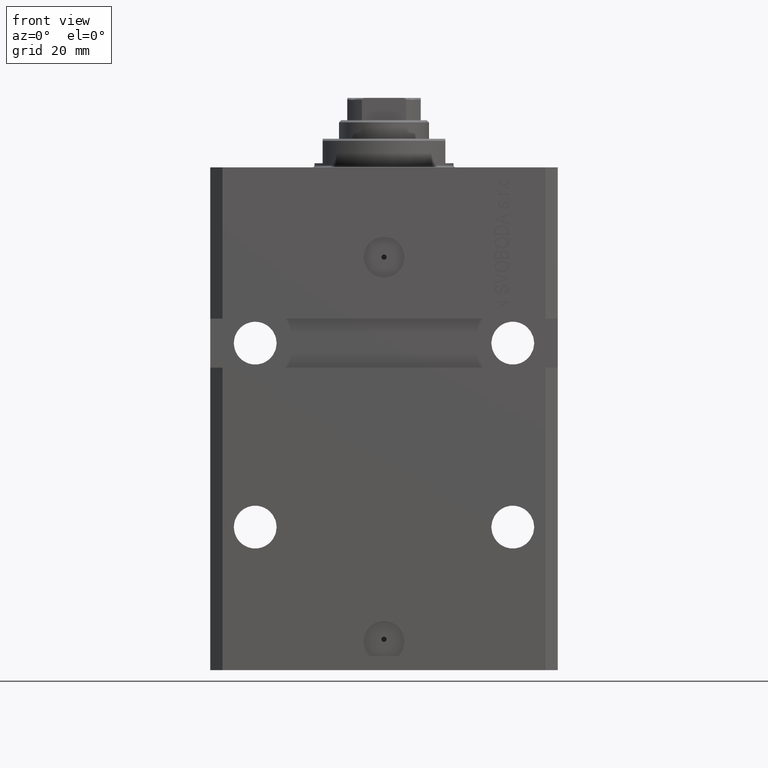
[diagram: clean part render]
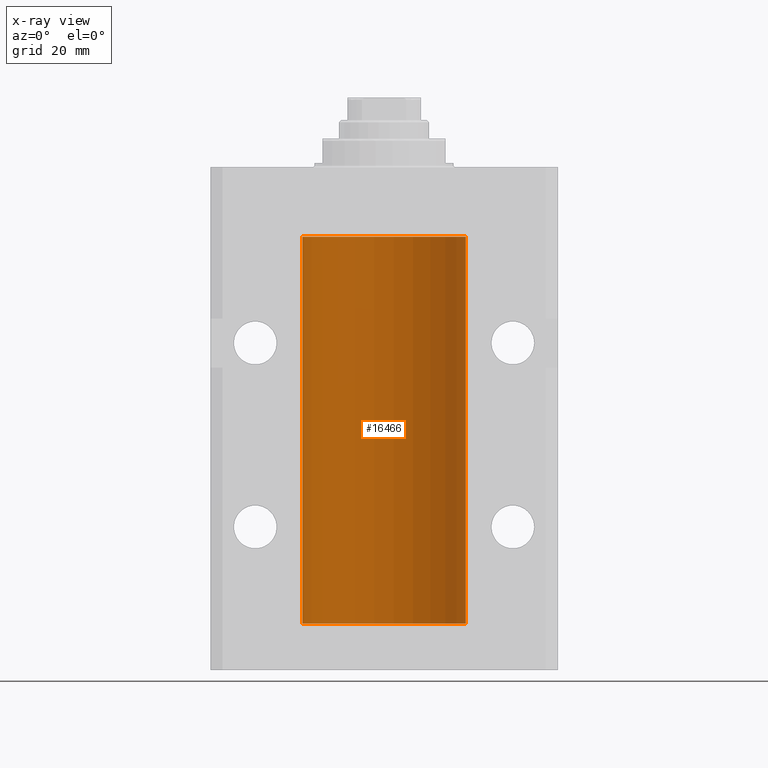
[diagram: x-ray — body ghosted, one internal face saturated and labeled with its STEP entity id]
A machine part, front view, then the same camera in x-ray: the body is ghosted and one INTERNAL B-rep face — a face not visible from any outside direction — is saturated and labeled: STEP entity #16466.
In plain terms, the highlighted cylindrical surface (partial cylindrical patch) has radius 20 mm, axis along (0, 0, 1).
Its self-contained STEP definition (entity closure, byte-faithful):
#91 = LINE ( 'NONE', #40933, #8524 ) ;
#765 = CARTESIAN_POINT ( 'NONE',  ( -19.99769349528941476, 0.3253804398728720182, -109.5585582072768318 ) ) ;
#1246 = CARTESIAN_POINT ( 'NONE',  ( -19.99253506710754991, 0.5587120480776772702, -109.3251162083024894 ) ) ;
#1426 = CARTESIAN_POINT ( 'NONE',  ( -19.99947377218718714, 0.1636439183262877461, -23.39126364004656011 ) ) ;
#1667 = CARTESIAN_POINT ( 'NONE',  ( -20.00000000000000000, 0.1631688615953320320, -24.62499999999985434 ) ) ;
#2355 = CIRCLE ( 'NONE', #7020, 20.00000000000000000 ) ;
#3598 = VERTEX_POINT ( 'NONE', #47060 ) ;
#3640 = ORIENTED_EDGE ( 'NONE', *, *, #6582, .F. ) ;
#4176 = CARTESIAN_POINT ( 'NONE',  ( -20.00000000000000355, 0.1631688615953337806, -109.6249999999998721 ) ) ;
#5321 = CARTESIAN_POINT ( 'NONE',  ( -19.99253506710754991, 0.5587120480776751608, -24.32511620830248589 ) ) ;
#5372 = CARTESIAN_POINT ( 'NONE',  ( -20.00000000000000000, 2.449293598294706513E-15, -111.5999999999999943 ) ) ;
#6346 = CARTESIAN_POINT ( 'NONE',  ( 0.000000000000000000, 0.000000000000000000, -111.5999999999999943 ) ) ;
#6582 = EDGE_CURVE ( 'NONE', #11101, #3598, #24065, .T. ) ;
#6890 = VERTEX_POINT ( 'NONE', #23530 ) ;
#7020 = AXIS2_PLACEMENT_3D ( 'NONE', #11689, #30610, #48143 ) ;
#8084 = CARTESIAN_POINT ( 'NONE',  ( -19.99638934703457593, 0.3843678041337614260, -108.5004636297810094 ) ) ;
#8262 = CARTESIAN_POINT ( 'NONE',  ( -19.99023018003212471, 0.6250578794725500931, -24.16284809704970371 ) ) ;
#8300 = CARTESIAN_POINT ( 'NONE',  ( 0.000000000000000000, 0.000000000000000000, -111.5999999999999943 ) ) ;
#8524 = VECTOR ( 'NONE', #44357, 1000.000000000000000 ) ;
#8733 = VERTEX_POINT ( 'NONE', #46745 ) ;
#8747 = CARTESIAN_POINT ( 'NONE',  ( -19.99769349528941120, 0.3253804398728645242, -24.55855820727680339 ) ) ;
#8862 = AXIS2_PLACEMENT_3D ( 'NONE', #6346, #20920, #47423 ) ;
#8883 = VECTOR ( 'NONE', #13068, 1000.000000000000000 ) ;
#9223 = CARTESIAN_POINT ( 'NONE',  ( -19.99999999999999645, 0.08259581631026780002, -23.37500000000000000 ) ) ;
#9240 = DIRECTION ( 'NONE',  ( -0.000000000000000000, -0.000000000000000000, 1.000000000000000000 ) ) ;
#11101 = VERTEX_POINT ( 'NONE', #42664 ) ;
#11689 = CARTESIAN_POINT ( 'NONE',  ( 0.000000000000000000, 0.000000000000000000, -17.00000000000000000 ) ) ;
#12222 = CARTESIAN_POINT ( 'NONE',  ( -20.00000000000000000, -1.494965790691426527E-14, -108.3750000000000000 ) ) ;
#12503 = ORIENTED_EDGE ( 'NONE', *, *, #19895, .T. ) ;
#13068 = DIRECTION ( 'NONE',  ( -0.000000000000000000, -0.000000000000000000, 1.000000000000000000 ) ) ;
#13490 = VECTOR ( 'NONE', #28213, 1000.000000000000000 ) ;
#13743 = EDGE_CURVE ( 'NONE', #20971, #27470, #29686, .T. ) ;
#14322 = CARTESIAN_POINT ( 'NONE',  ( 20.00000000000000000, 0.000000000000000000, -111.5999999999999943 ) ) ;
#15389 = CARTESIAN_POINT ( 'NONE',  ( -19.99256581701871838, 0.5573276956901952461, -108.6734856577094916 ) ) ;
#15787 = EDGE_CURVE ( 'NONE', #37272, #8733, #38185, .T. ) ;
#15804 = CARTESIAN_POINT ( 'NONE',  ( -19.99766197842594906, 0.3150331617867667688, -23.45402070102505476 ) ) ;
#15870 = CARTESIAN_POINT ( 'NONE',  ( -19.99999999999999289, 0.08259581631025748882, -108.3749999999999716 ) ) ;
#16466 = ADVANCED_FACE ( 'NONE', ( #40106 ), #24577, .F. ) ;
#19748 = CARTESIAN_POINT ( 'NONE',  ( -19.99947377218718358, 0.1636439183262759223, -108.3912636400465459 ) ) ;
#19895 = EDGE_CURVE ( 'NONE', #37272, #3598, #22983, .T. ) ;
#19928 = CARTESIAN_POINT ( 'NONE',  ( -19.99023380173166231, 0.6249420416828462832, -23.83670793056396064 ) ) ;
#20163 = CARTESIAN_POINT ( 'NONE',  ( -19.99256581701871482, 0.5573276956902001311, -23.67348565770948809 ) ) ;
#20920 = DIRECTION ( 'NONE',  ( -0.000000000000000000, -0.000000000000000000, 1.000000000000000000 ) ) ;
#20971 = VERTEX_POINT ( 'NONE', #14322 ) ;
#21442 = ORIENTED_EDGE ( 'NONE', *, *, #45591, .T. ) ;
#22018 = VERTEX_POINT ( 'NONE', #22581 ) ;
#22581 = CARTESIAN_POINT ( 'NONE',  ( 20.00000000000000000, 0.000000000000000000, -17.00000000000000000 ) ) ;
#22983 = B_SPLINE_CURVE_WITH_KNOTS ( 'NONE', 3,
 ( #37895, #9223, #1426, #15804, #23565, #20163, #19928, #8262, #5321, #8747, #1667, #23081 ),
 .UNSPECIFIED., .F., .F.,
 ( 4, 2, 2, 2, 2, 4 ),
 ( 5.848927291235706941E-19, 0.0002442693137305304075, 0.0004885386274610601645, 0.0009770772549221123059, 0.001465615882383164339, 0.001954154509844215938 ),
 .UNSPECIFIED. ) ;
#23081 = CARTESIAN_POINT ( 'NONE',  ( -20.00000000000010303, 3.580159278407742946E-13, -24.62500000000332889 ) ) ;
#23512 = CARTESIAN_POINT ( 'NONE',  ( -20.00000000000000000, 2.449293598294706513E-15, -111.5999999999999943 ) ) ;
#23530 = CARTESIAN_POINT ( 'NONE',  ( -20.00000000000010303, 3.580159290815452135E-13, -109.6250000000033253 ) ) ;
#23565 = CARTESIAN_POINT ( 'NONE',  ( -19.99638934703457593, 0.3843678041337688644, -23.50046362978100944 ) ) ;
#23828 = CARTESIAN_POINT ( 'NONE',  ( -20.00000000000000000, 2.449293598294706513E-15, -111.5999999999999943 ) ) ;
#24065 = LINE ( 'NONE', #23828, #46659 ) ;
#24577 = CYLINDRICAL_SURFACE ( 'NONE', #8862, 20.00000000000000000 ) ;
#25094 = EDGE_CURVE ( 'NONE', #27470, #6890, #31510, .T. ) ;
#25162 = CARTESIAN_POINT ( 'NONE',  ( -20.00000000000000000, -2.867584836844214272E-15, -23.37500000000000000 ) ) ;
#25747 = EDGE_LOOP ( 'NONE', ( #31612, #29549, #41140, #21442, #37130, #12503, #3640, #34512 ) ) ;
#26485 = CARTESIAN_POINT ( 'NONE',  ( -20.00000000000000000, 2.449293598294706513E-15, -111.5999999999999943 ) ) ;
#27029 = CARTESIAN_POINT ( 'NONE',  ( -20.00000000000010303, 3.580159290815452135E-13, -109.6250000000033253 ) ) ;
#27242 = DIRECTION ( 'NONE',  ( 1.000000000000000000, 0.000000000000000000, 0.000000000000000000 ) ) ;
#27470 = VERTEX_POINT ( 'NONE', #26485 ) ;
#28213 = DIRECTION ( 'NONE',  ( -0.000000000000000000, -0.000000000000000000, 1.000000000000000000 ) ) ;
#29549 = ORIENTED_EDGE ( 'NONE', *, *, #13743, .F. ) ;
#29686 = CIRCLE ( 'NONE', #29797, 20.00000000000000000 ) ;
#29797 = AXIS2_PLACEMENT_3D ( 'NONE', #8300, #45247, #27242 ) ;
#30610 = DIRECTION ( 'NONE',  ( 0.000000000000000000, 0.000000000000000000, 1.000000000000000000 ) ) ;
#31510 = LINE ( 'NONE', #23512, #8883 ) ;
#31612 = ORIENTED_EDGE ( 'NONE', *, *, #25094, .F. ) ;
#32751 = EDGE_CURVE ( 'NONE', #11101, #6890, #38706, .T. ) ;
#33830 = CARTESIAN_POINT ( 'NONE',  ( -19.99023380173165876, 0.6249420416828411762, -108.8367079305639322 ) ) ;
#34316 = CARTESIAN_POINT ( 'NONE',  ( -19.99766197842594906, 0.3150331617867563327, -108.4540207010250299 ) ) ;
#34512 = ORIENTED_EDGE ( 'NONE', *, *, #32751, .T. ) ;
#37130 = ORIENTED_EDGE ( 'NONE', *, *, #15787, .F. ) ;
#37272 = VERTEX_POINT ( 'NONE', #25162 ) ;
#37895 = CARTESIAN_POINT ( 'NONE',  ( -20.00000000000000000, -2.867584836844214272E-15, -23.37500000000000000 ) ) ;
#38185 = LINE ( 'NONE', #5372, #13490 ) ;
#38706 = B_SPLINE_CURVE_WITH_KNOTS ( 'NONE', 3,
 ( #12222, #15870, #19748, #34316, #8084, #15389, #33830, #45274, #1246, #765, #4176, #27029 ),
 .UNSPECIFIED., .F., .F.,
 ( 4, 2, 2, 2, 2, 4 ),
 ( 1.555867690894744095E-18, 0.0002442693137305176681, 0.0004885386274610337099, 0.0009770772549220949586, 0.001465615882383156099, 0.001954154509844217673 ),
 .UNSPECIFIED. ) ;
#40106 = FACE_OUTER_BOUND ( 'NONE', #25747, .T. ) ;
#40933 = CARTESIAN_POINT ( 'NONE',  ( 20.00000000000000000, 0.000000000000000000, -111.5999999999999943 ) ) ;
#41140 = ORIENTED_EDGE ( 'NONE', *, *, #41183, .T. ) ;
#41183 = EDGE_CURVE ( 'NONE', #20971, #22018, #91, .T. ) ;
#42664 = CARTESIAN_POINT ( 'NONE',  ( -20.00000000000000000, -1.494965790691426527E-14, -108.3750000000000000 ) ) ;
#44357 = DIRECTION ( 'NONE',  ( -0.000000000000000000, -0.000000000000000000, 1.000000000000000000 ) ) ;
#45247 = DIRECTION ( 'NONE',  ( 0.000000000000000000, 0.000000000000000000, 1.000000000000000000 ) ) ;
#45274 = CARTESIAN_POINT ( 'NONE',  ( -19.99023018003212471, 0.6250578794725484277, -109.1628480970496895 ) ) ;
#45591 = EDGE_CURVE ( 'NONE', #22018, #8733, #2355, .T. ) ;
#46659 = VECTOR ( 'NONE', #9240, 1000.000000000000000 ) ;
#46745 = CARTESIAN_POINT ( 'NONE',  ( -20.00000000000000000, 2.449293598294706513E-15, -17.00000000000000000 ) ) ;
#47060 = CARTESIAN_POINT ( 'NONE',  ( -20.00000000000010303, 3.580159278407742946E-13, -24.62500000000332889 ) ) ;
#47423 = DIRECTION ( 'NONE',  ( 1.000000000000000000, 0.000000000000000000, 0.000000000000000000 ) ) ;
#48143 = DIRECTION ( 'NONE',  ( 1.000000000000000000, 0.000000000000000000, 0.000000000000000000 ) ) ;